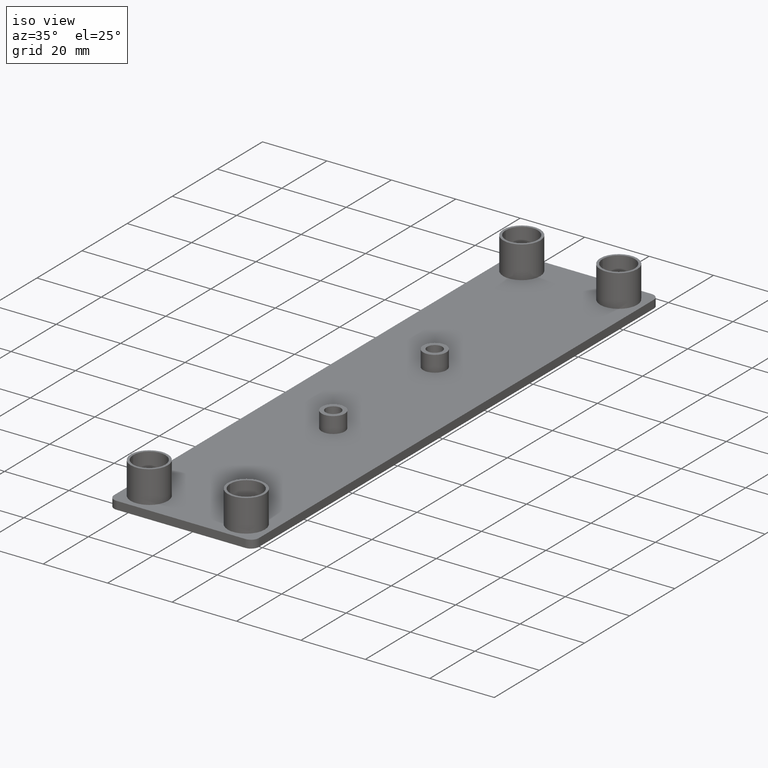
[diagram: clean part render]
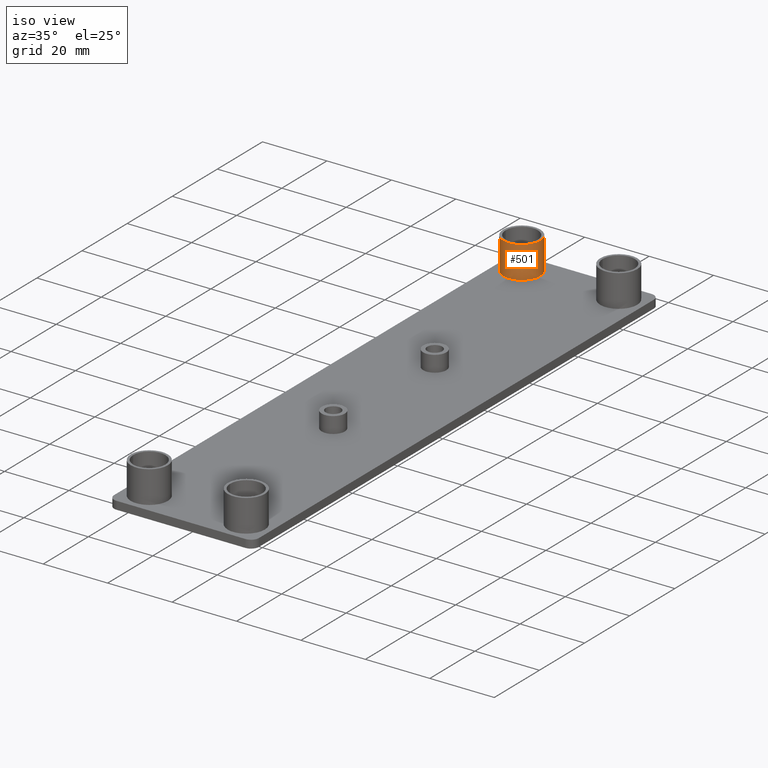
[diagram: same view with one face highlighted and labeled with its STEP entity id]
A machine part, iso view. The second image highlights one B-rep face of the part: STEP entity #501.
In plain terms, the highlighted cylindrical surface (bore or boss wall) has radius 5.75 mm, axis along (0, 0, 1).
Its self-contained STEP definition (entity closure, byte-faithful):
#34=LINE('',#835,#62);
#62=VECTOR('',#692,5.749999999977);
#90=CYLINDRICAL_SURFACE('',#576,5.749999999977);
#116=FACE_OUTER_BOUND('',#154,.T.);
#154=EDGE_LOOP('',(#356,#357,#358,#359));
#196=CIRCLE('',#577,5.749999999977);
#197=CIRCLE('',#578,5.749999999977);
#228=VERTEX_POINT('',#832);
#229=VERTEX_POINT('',#834);
#276=EDGE_CURVE('',#228,#228,#196,.T.);
#277=EDGE_CURVE('',#228,#229,#34,.T.);
#278=EDGE_CURVE('',#229,#229,#197,.T.);
#356=ORIENTED_EDGE('',*,*,#276,.F.);
#357=ORIENTED_EDGE('',*,*,#277,.T.);
#358=ORIENTED_EDGE('',*,*,#278,.T.);
#359=ORIENTED_EDGE('',*,*,#277,.F.);
#501=ADVANCED_FACE('',(#116),#90,.T.);
#576=AXIS2_PLACEMENT_3D('',#831,#688,#689);
#577=AXIS2_PLACEMENT_3D('',#833,#690,#691);
#578=AXIS2_PLACEMENT_3D('',#836,#693,#694);
#688=DIRECTION('center_axis',(0.,0.,1.));
#689=DIRECTION('ref_axis',(1.,0.,0.));
#690=DIRECTION('center_axis',(0.,0.,1.));
#691=DIRECTION('ref_axis',(1.,0.,0.));
#692=DIRECTION('',(0.,0.,-1.));
#693=DIRECTION('center_axis',(0.,0.,1.));
#694=DIRECTION('ref_axis',(1.,0.,0.));
#831=CARTESIAN_POINT('Origin',(-15.0500219999399,105.05004499958,0.));
#832=CARTESIAN_POINT('',(-20.8000219999169,105.05004499958,10.));
#833=CARTESIAN_POINT('Origin',(-15.0500219999399,105.05004499958,10.));
#834=CARTESIAN_POINT('',(-20.8000219999169,105.05004499958,0.));
#835=CARTESIAN_POINT('',(-20.8000219999169,105.05004499958,0.));
#836=CARTESIAN_POINT('Origin',(-15.0500219999399,105.05004499958,0.));